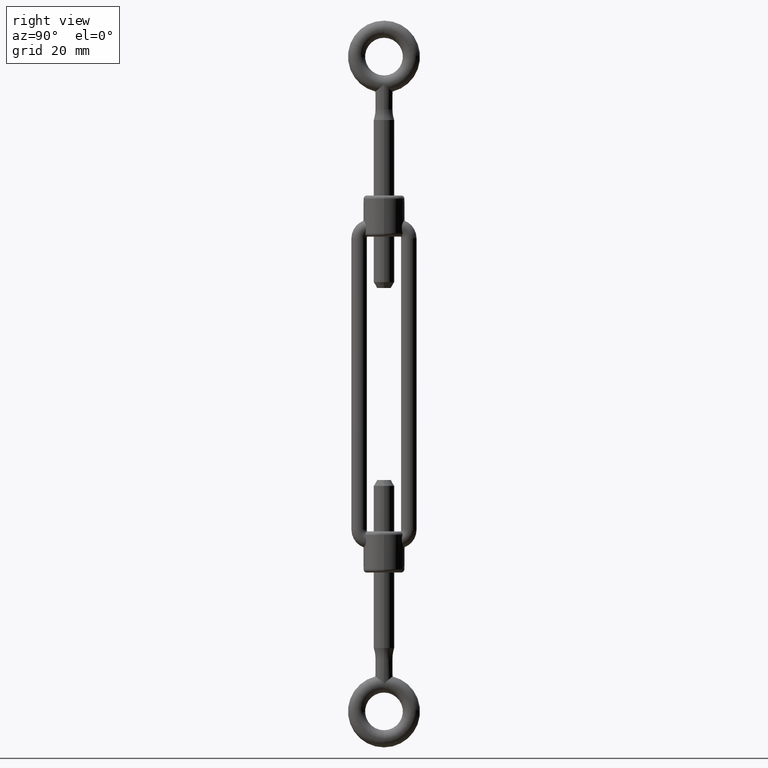
[diagram: clean part render]
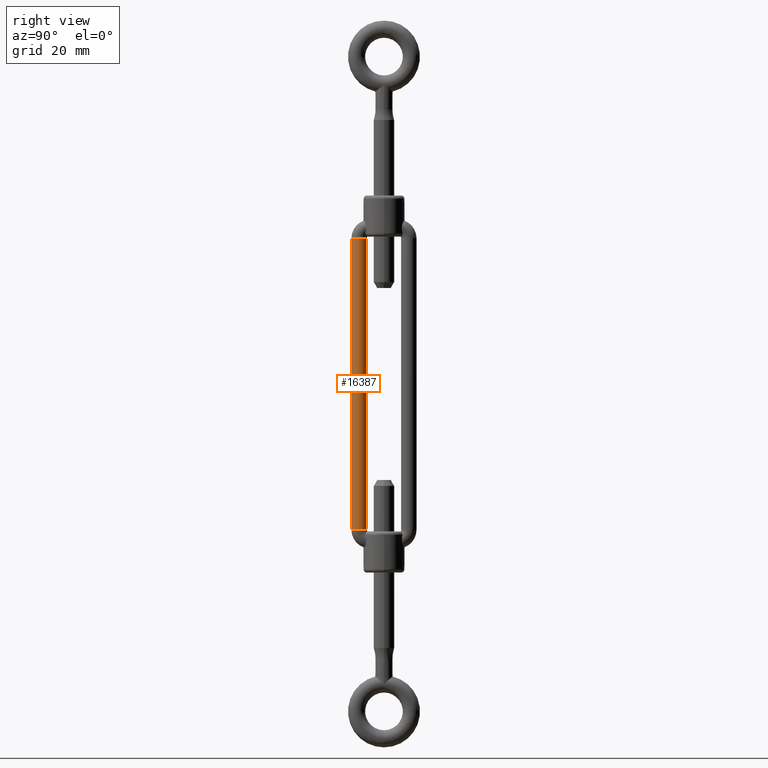
[diagram: same view with one face highlighted and labeled with its STEP entity id]
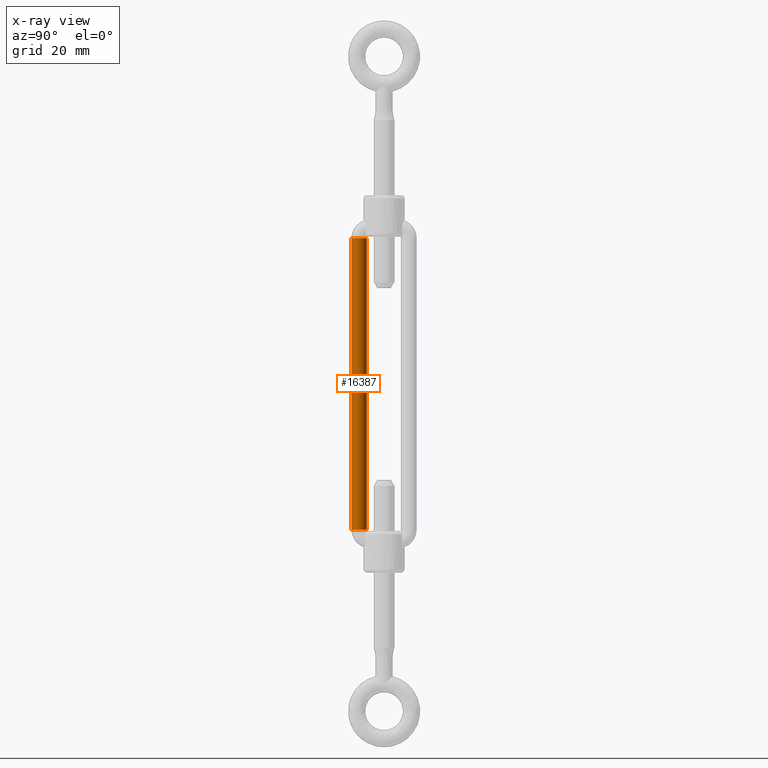
[diagram: x-ray of the same camera — body ghosted, the highlighted face saturated]
A machine part, right view. The second image highlights one B-rep face of the part: STEP entity #16387.
The next image is the same camera in x-ray: the body ghosted, the highlighted face saturated — about 0% of this face is hidden behind the body in this view.
In plain terms, the highlighted cylindrical surface (edge-blend (fillet) strip) has radius 2.25 mm, axis along (0, -0, -1).
Its self-contained STEP definition (entity closure, byte-faithful):
#960 = AXIS2_PLACEMENT_3D ( 'NONE', #5299, #11724, #19650 ) ;
#3235 = DIRECTION ( 'NONE',  ( 0.0000000000000000000, -1.000000000000000000, 0.0000000000000000000 ) ) ;
#3380 = CARTESIAN_POINT ( 'NONE',  ( 0.7500000000000015500, -7.249999999999994700, -42.50000000000000000 ) ) ;
#3517 = CARTESIAN_POINT ( 'NONE',  ( 0.7500000000000015500, -4.999999999999997300, 42.49999999999998600 ) ) ;
#4420 = DIRECTION ( 'NONE',  ( 0.0000000000000000000, -1.000000000000000000, 0.0000000000000000000 ) ) ;
#4435 = EDGE_CURVE ( 'NONE', #4463, #19689, #4824, .T. ) ;
#4463 = VERTEX_POINT ( 'NONE', #14126 ) ;
#4824 = CIRCLE ( 'NONE', #20536, 2.249999999999995100 ) ;
#5299 = CARTESIAN_POINT ( 'NONE',  ( 0.7500000000000015500, -7.249999999999992900, 42.49999999999998600 ) ) ;
#5470 = ORIENTED_EDGE ( 'NONE', *, *, #19473, .T. ) ;
#5581 = LINE ( 'NONE', #13573, #13532 ) ;
#6262 = CARTESIAN_POINT ( 'NONE',  ( 0.7500000000000015500, -4.999999999999999100, -42.50000000000000000 ) ) ;
#6334 = LINE ( 'NONE', #15999, #10537 ) ;
#7109 = ORIENTED_EDGE ( 'NONE', *, *, #16252, .T. ) ;
#8214 = ORIENTED_EDGE ( 'NONE', *, *, #12680, .F. ) ;
#9357 = CARTESIAN_POINT ( 'NONE',  ( 0.7500000000000015500, -7.249999999999992900, 42.49999999999998600 ) ) ;
#10141 = AXIS2_PLACEMENT_3D ( 'NONE', #3380, #12741, #3235 ) ;
#10363 = ORIENTED_EDGE ( 'NONE', *, *, #4435, .F. ) ;
#10537 = VECTOR ( 'NONE', #12592, 1000.000000000000000 ) ;
#11724 = DIRECTION ( 'NONE',  ( 0.0000000000000000000, -2.040851148208008500E-017, -1.000000000000000000 ) ) ;
#12592 = DIRECTION ( 'NONE',  ( 0.0000000000000000000, -2.040851148208008500E-017, -1.000000000000000000 ) ) ;
#12680 = EDGE_CURVE ( 'NONE', #19689, #17685, #6334, .T. ) ;
#12741 = DIRECTION ( 'NONE',  ( -0.0000000000000000000, 6.123233995736766000E-017, 1.000000000000000000 ) ) ;
#13532 = VECTOR ( 'NONE', #18341, 1000.000000000000000 ) ;
#13562 = CYLINDRICAL_SURFACE ( 'NONE', #960, 2.249999999999995100 ) ;
#13573 = CARTESIAN_POINT ( 'NONE',  ( 0.7500000000000015500, -9.499999999999987600, 42.49999999999998600 ) ) ;
#13635 = VERTEX_POINT ( 'NONE', #19352 ) ;
#14126 = CARTESIAN_POINT ( 'NONE',  ( 0.7500000000000015500, -9.499999999999987600, 42.49999999999998600 ) ) ;
#15999 = CARTESIAN_POINT ( 'NONE',  ( 0.7500000000000015500, -4.999999999999997300, 42.49999999999998600 ) ) ;
#16252 = EDGE_CURVE ( 'NONE', #13635, #17685, #17074, .T. ) ;
#16387 = ADVANCED_FACE ( 'NONE', ( #18779 ), #13562, .T. ) ;
#17074 = CIRCLE ( 'NONE', #10141, 2.249999999999995100 ) ;
#17685 = VERTEX_POINT ( 'NONE', #6262 ) ;
#18341 = DIRECTION ( 'NONE',  ( 0.0000000000000000000, -2.040851148208008500E-017, -1.000000000000000000 ) ) ;
#18779 = FACE_OUTER_BOUND ( 'NONE', #19375, .T. ) ;
#19352 = CARTESIAN_POINT ( 'NONE',  ( 0.7500000000000015500, -9.499999999999989300, -42.50000000000000000 ) ) ;
#19375 = EDGE_LOOP ( 'NONE', ( #10363, #5470, #7109, #8214 ) ) ;
#19473 = EDGE_CURVE ( 'NONE', #4463, #13635, #5581, .T. ) ;
#19650 = DIRECTION ( 'NONE',  ( 0.0000000000000000000, 1.000000000000000000, 0.0000000000000000000 ) ) ;
#19689 = VERTEX_POINT ( 'NONE', #3517 ) ;
#20480 = DIRECTION ( 'NONE',  ( -0.0000000000000000000, 6.123233995736766000E-017, 1.000000000000000000 ) ) ;
#20536 = AXIS2_PLACEMENT_3D ( 'NONE', #9357, #20480, #4420 ) ;